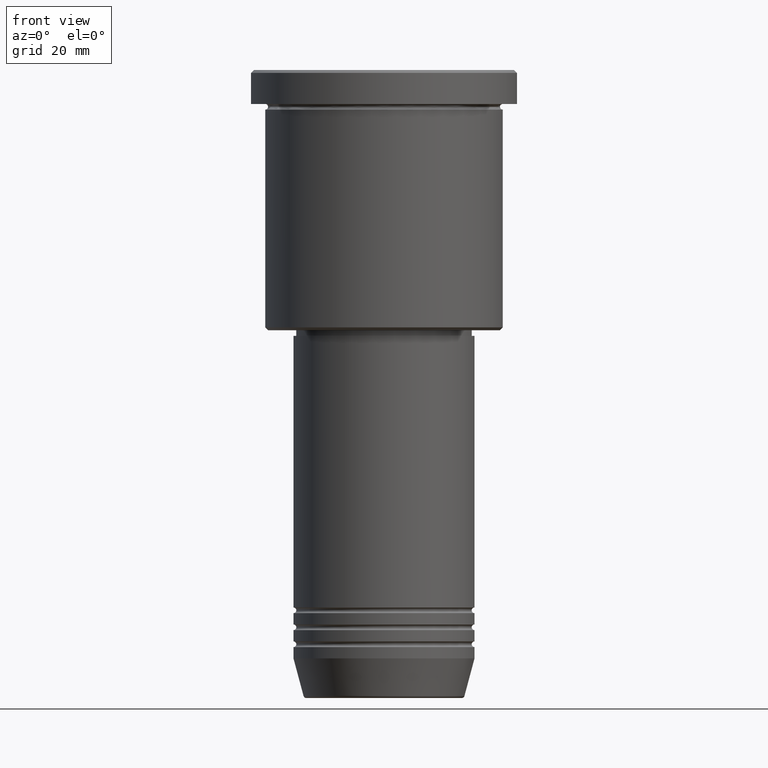
[diagram: clean part render]
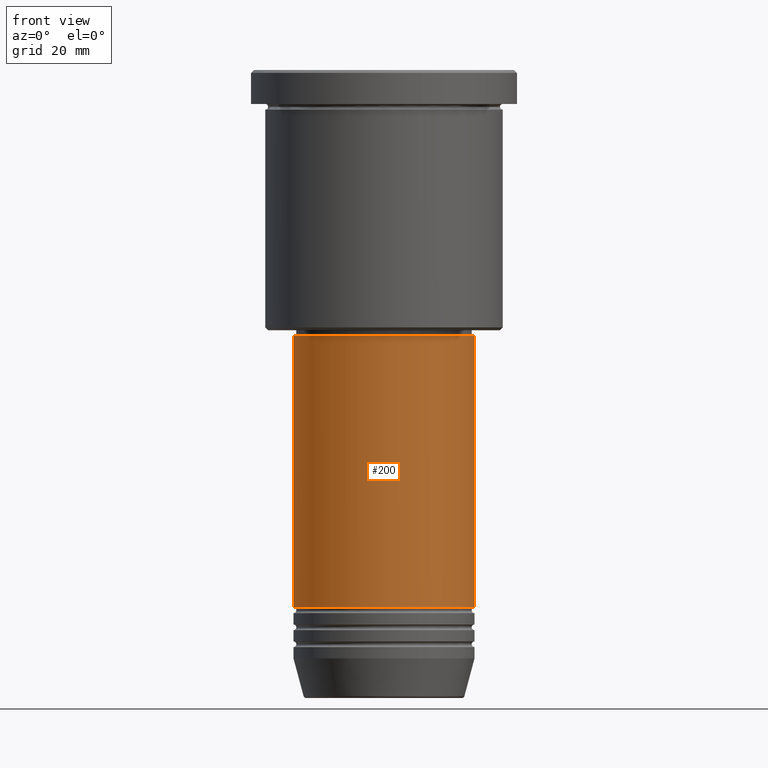
[diagram: same view with one face highlighted and labeled with its STEP entity id]
A machine part, front view. The second image highlights one B-rep face of the part: STEP entity #200.
In plain terms, the highlighted cylindrical surface (partial cylindrical patch) has radius 16 mm, axis along (-0, -0, 1).
Its self-contained STEP definition (entity closure, byte-faithful):
#38 = CIRCLE ( 'NONE', #698, 16.00000000000000000 ) ;
#64 = CARTESIAN_POINT ( 'NONE',  ( 0.000000000000000000, 0.000000000000000000, -47.00000000000000711 ) ) ;
#89 = VERTEX_POINT ( 'NONE', #767 ) ;
#126 = DIRECTION ( 'NONE',  ( -0.000000000000000000, -0.000000000000000000, 1.000000000000000000 ) ) ;
#169 = ORIENTED_EDGE ( 'NONE', *, *, #589, .T. ) ;
#174 = AXIS2_PLACEMENT_3D ( 'NONE', #64, #350, #355 ) ;
#200 = ADVANCED_FACE ( 'NONE', ( #218 ), #1036, .T. ) ;
#218 = FACE_OUTER_BOUND ( 'NONE', #1005, .T. ) ;
#226 = DIRECTION ( 'NONE',  ( 1.000000000000000000, 0.000000000000000000, 0.000000000000000000 ) ) ;
#277 = DIRECTION ( 'NONE',  ( -0.000000000000000000, -0.000000000000000000, 1.000000000000000000 ) ) ;
#290 = DIRECTION ( 'NONE',  ( -0.000000000000000000, -0.000000000000000000, 1.000000000000000000 ) ) ;
#298 = CARTESIAN_POINT ( 'NONE',  ( 0.000000000000000000, 0.000000000000000000, 0.000000000000000000 ) ) ;
#310 = CARTESIAN_POINT ( 'NONE',  ( -16.00000000000000000, 1.959434878635765131E-15, 0.000000000000000000 ) ) ;
#311 = CARTESIAN_POINT ( 'NONE',  ( 0.000000000000000000, 0.000000000000000000, -94.99999999999997158 ) ) ;
#350 = DIRECTION ( 'NONE',  ( -0.000000000000000000, -0.000000000000000000, 1.000000000000000000 ) ) ;
#355 = DIRECTION ( 'NONE',  ( 1.000000000000000000, 0.000000000000000000, 0.000000000000000000 ) ) ;
#364 = CARTESIAN_POINT ( 'NONE',  ( 16.00000000000000000, 0.000000000000000000, -47.00000000000000711 ) ) ;
#496 = AXIS2_PLACEMENT_3D ( 'NONE', #298, #290, #226 ) ;
#497 = VECTOR ( 'NONE', #126, 1000.000000000000000 ) ;
#539 = CIRCLE ( 'NONE', #174, 16.00000000000000000 ) ;
#551 = EDGE_CURVE ( 'NONE', #1044, #844, #1011, .T. ) ;
#561 = LINE ( 'NONE', #310, #763 ) ;
#589 = EDGE_CURVE ( 'NONE', #816, #1044, #38, .T. ) ;
#618 = ORIENTED_EDGE ( 'NONE', *, *, #833, .F. ) ;
#657 = DIRECTION ( 'NONE',  ( 1.000000000000000000, 0.000000000000000000, 0.000000000000000000 ) ) ;
#698 = AXIS2_PLACEMENT_3D ( 'NONE', #311, #277, #657 ) ;
#763 = VECTOR ( 'NONE', #1096, 1000.000000000000000 ) ;
#767 = CARTESIAN_POINT ( 'NONE',  ( -16.00000000000000000, 1.959434878635765131E-15, -47.00000000000000711 ) ) ;
#816 = VERTEX_POINT ( 'NONE', #822 ) ;
#822 = CARTESIAN_POINT ( 'NONE',  ( -16.00000000000000000, 1.959434878635765131E-15, -94.99999999999997158 ) ) ;
#833 = EDGE_CURVE ( 'NONE', #89, #844, #539, .T. ) ;
#844 = VERTEX_POINT ( 'NONE', #364 ) ;
#884 = ORIENTED_EDGE ( 'NONE', *, *, #551, .T. ) ;
#976 = EDGE_CURVE ( 'NONE', #816, #89, #561, .T. ) ;
#1005 = EDGE_LOOP ( 'NONE', ( #1182, #169, #884, #618 ) ) ;
#1011 = LINE ( 'NONE', #1024, #497 ) ;
#1024 = CARTESIAN_POINT ( 'NONE',  ( 16.00000000000000000, 0.000000000000000000, 0.000000000000000000 ) ) ;
#1036 = CYLINDRICAL_SURFACE ( 'NONE', #496, 16.00000000000000000 ) ;
#1044 = VERTEX_POINT ( 'NONE', #1105 ) ;
#1096 = DIRECTION ( 'NONE',  ( -0.000000000000000000, -0.000000000000000000, 1.000000000000000000 ) ) ;
#1105 = CARTESIAN_POINT ( 'NONE',  ( 16.00000000000000000, 0.000000000000000000, -94.99999999999997158 ) ) ;
#1182 = ORIENTED_EDGE ( 'NONE', *, *, #976, .F. ) ;